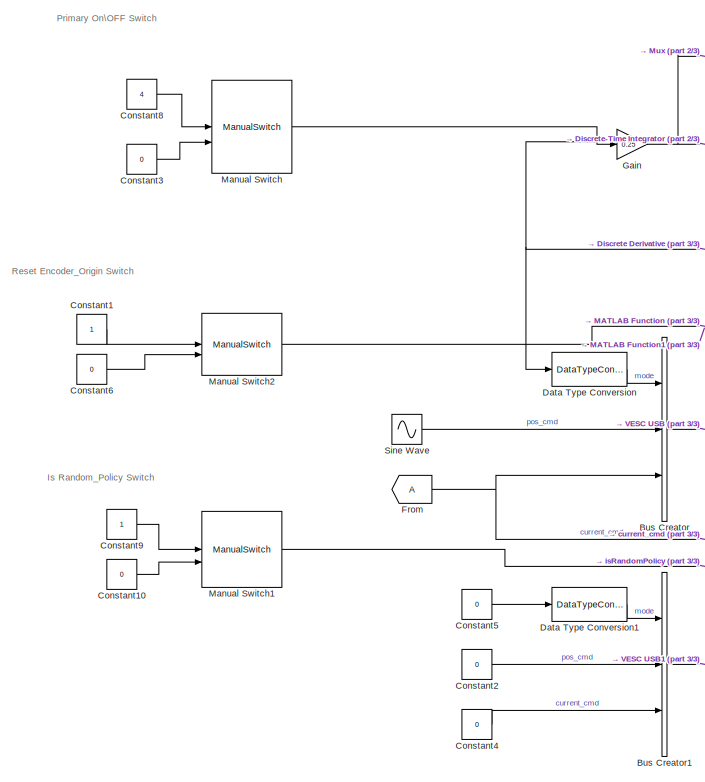
[diagram: root canvas - part 1/3, left side, full height]
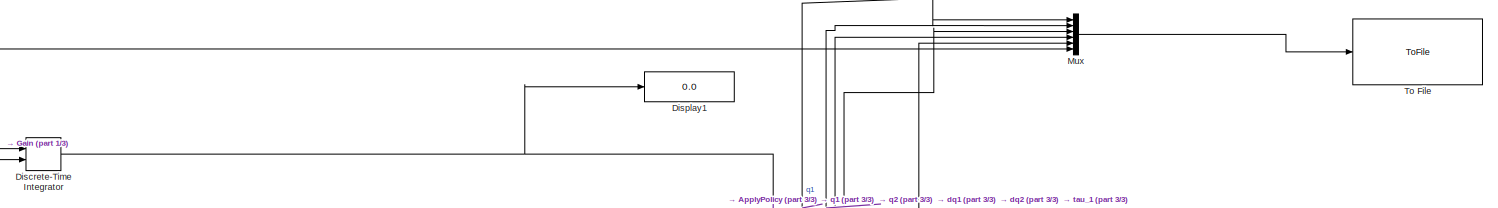
[diagram: root canvas - part 2/3, top center region]
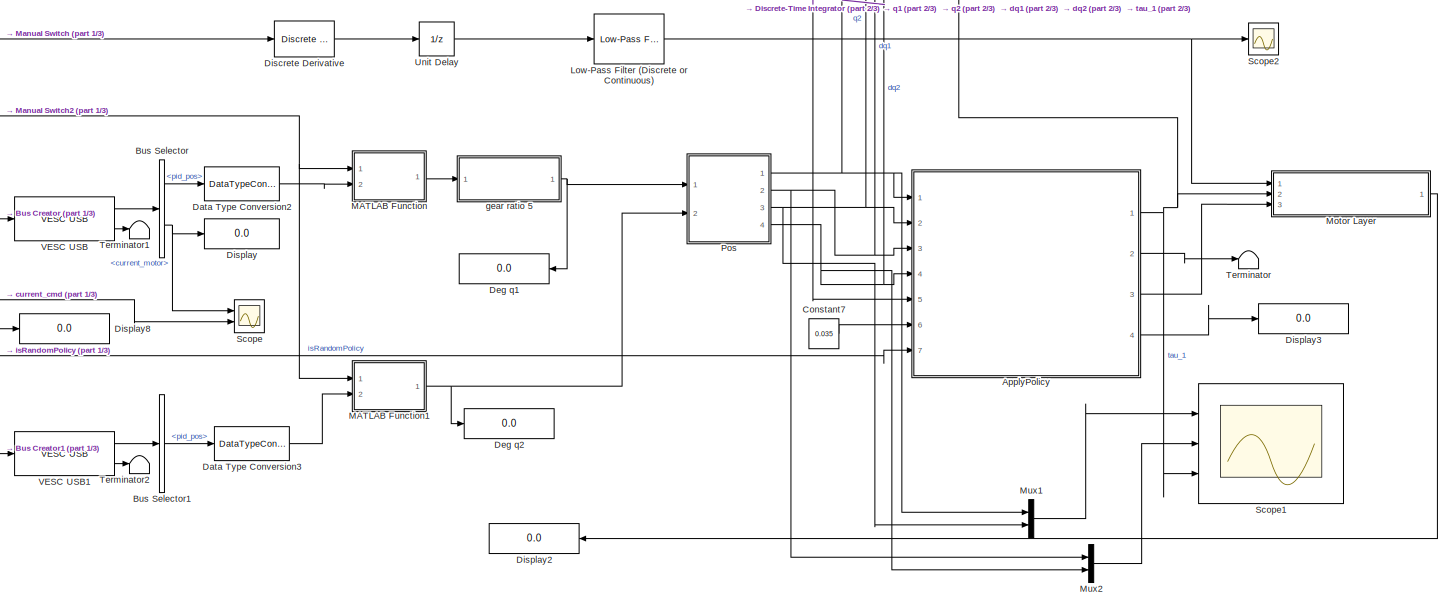
[diagram: root canvas - part 3/3, central region]
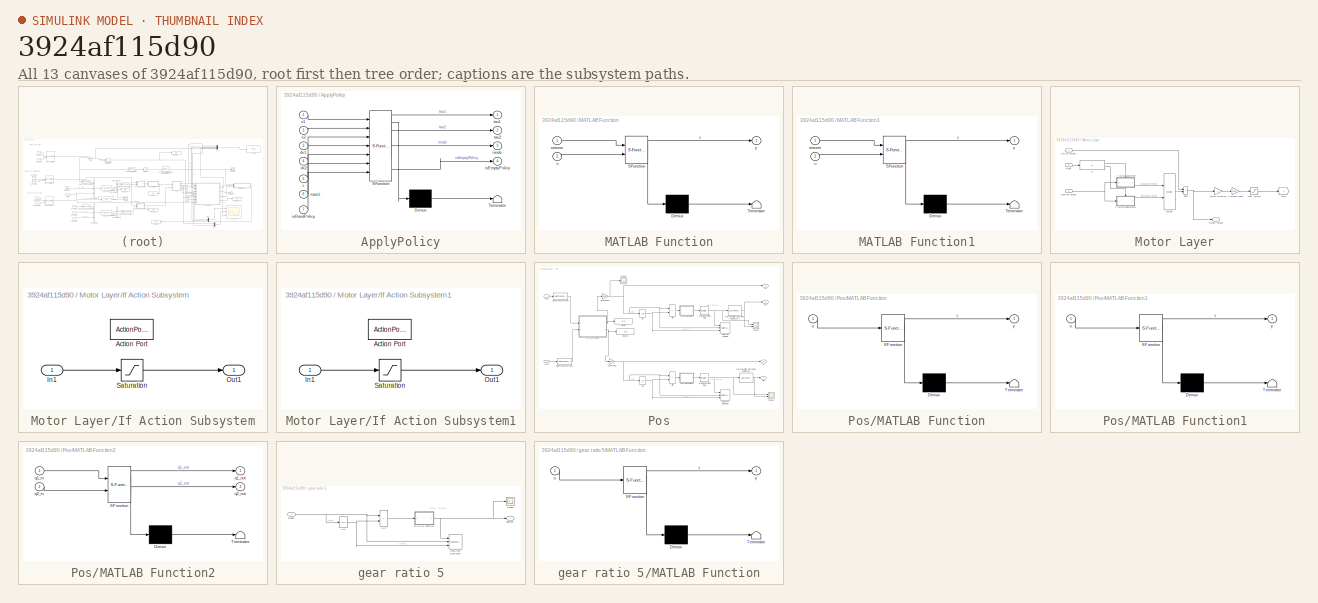
[diagram: thumbnail index - all 13 canvases of the model, root first then tree order]
MODEL slx_3924af115d90
KIND model
CONFIG AbsTol = auto
CONFIG EnableMultiTasking = on
CONFIG FixedStep = auto
CONFIG MaxStep = auto
CONFIG MinStep = auto
CONFIG RelTol = 1e-3
CONFIG SampleTimeConstraint = Unconstrained
CONFIG Solver = FixedStepAuto
CONFIG SolverName = FixedStepAuto
CONFIG StartTime = 0.0
CONFIG StopTime = inf
WORKSPACE source: mxarray member
WORKSPACE Da = 2
WORKSPACE Du = 1
WORKSPACE H = 60
WORKSPACE J = 1
WORKSPACE K = 1
WORKSPACE M: object (value not decoded)
WORKSPACE N = 20
WORKSPACE S0 = [0.01 0 0 0 0 0.01 0 0 0 0 0.0001 0 ... (16 elements, 4x4)]
WORKSPACE S0Sim = [0.01 0 0 0 0 0.01 0 0 0 0 0.0001 0 ... (16 elements, 4x4)]
WORKSPACE Sig: Simulink.Signal (value not decoded)
WORKSPACE Sig1: Simulink.Signal (value not decoded)
WORKSPACE Sigma: object (value not decoded)
WORKSPACE T = 3
WORKSPACE Xh = [3.23195665748 2.09576255698 -0.136551314425 -0.588254405024 -0.201907649817 2.18567618171 -3.25197677698 1.14254532077 -1.68859776393 2.3666318046 2.42554352774 0.153414508771 ... (36 elements, 9x4)]
WORKSPACE angi = [3 4]
WORKSPACE augi = []
WORKSPACE basename = 'pendubot_'
WORKSPACE cc = [0 0 -9.9995000125e-05 0 0 0 -1.22458556834e-20 0 0 0 0 -9.9995000125e-05 ... (16 elements, 4x4)]
WORKSPACE cost: object (value not decoded)
WORKSPACE difi = [1 2 3 4]
WORKSPACE dt = 0.05
WORKSPACE dyni = [1 2 5 6 7 8]
WORKSPACE dynmodel: object (value not decoded)
WORKSPACE dyno = [1 2 3 4]
WORKSPACE fX3 = [57.5848751283 57.5848706735 57.584870567 57.5848705445 57.584869604 57.5848692003 57.5848690287 57.584868717 57.5848685976 57.5848685293 57.5848683991 57.5848682957 ... (151 elements, 151x1)]
WORKSPACE fantasy: object (value not decoded)
WORKSPACE i = 108
WORKSPACE j = 1
WORKSPACE mm = [0 0 3.14159265359 3.14159265359 1.22458556834e-16 -0.99995000125 1.22458556834e-16 -0.99995000125]
WORKSPACE mu0 = [0 0 3.14159265359 3.14159265359]
WORKSPACE mu0Sim = [0 0 3.14159265359 3.14159265359]
WORKSPACE nc = 200
WORKSPACE odei = [1 2 3 4]
WORKSPACE opt: object (value not decoded)
WORKSPACE plant: object (value not decoded)
WORKSPACE plotting: verbosity (value not decoded)
WORKSPACE poli = [1 2 5 6 7 8]
WORKSPACE policy: object (value not decoded)
WORKSPACE rd = '../../'
WORKSPACE realCost: object (value not decoded)
WORKSPACE record_data = [3.14159265359 -3.1396751776 0.0306796157577 0 0 3.14159265359 -3.1408256632 -0.0230097118183 0 0.0167798938511 3.14159265359 3.14120915839 ... (545 elements, 5x109)]
WORKSPACE s = [3.99154064865 -6.40884909322 3.07813248092 -2.1607954049 0.0634175868444 -0.997987078914 -0.830941192004 -0.556360256876]
WORKSPACE sa = [0.0634175868444 -0.997987078914 -0.830941192004 -0.556360256876]
WORKSPACE ss = [0.01 0 0 0 0 0 0 0 0 0.01 0 0 ... (64 elements, 8x8)]
WORKSPACE trainOpt = [200 200]
WORKSPACE x = [0.0306796157577 -0.0230097118183 -0.0230097118183 -0.27412822575 0.0873506184902 1.75503381101 1.22816627149 -0.676608032868 -1.33717744439 -2.33662132144 -2.60950904676 -2.36326465025 ... (972 elements, 108x9)]
WORKSPACE x_ = [3.14159265359 3.14159265359 3.14159265359 -3.11771653557 -3.0819023985 -3.13719441642 3.01718558664 2.86638914992 2.73318560862 2.6734953269 2.7155927132 2.87392898507 ... (540 elements, 108x5)]
WORKSPACE xaug = [0.0306796157577 -0.0230097118183 -0.0230097118183 -0.27412822575 0.0873506184902 1.75503381101 1.22816627149 -0.676608032868 -1.33717744439 -2.33662132144 -2.60950904676 -2.36326465025 ... (864 elements, 108x8)]
WORKSPACE y = [-0.0230097118183 -0.0230097118183 -0.27412822575 0.0873506184902 1.75503381101 1.22816627149 -0.676608032868 -1.33717744439 -2.33662132144 -2.60950904676 -2.36326465025 -0.567289531178 ... (432 elements, 108x4)]
WORKSPACE y_ = [3.14159265359 3.14159265359 -3.11771653557 -3.0819023985 -3.13719441642 3.01718558664 2.86638914992 2.73318560862 2.6734953269 2.7155927132 2.87392898507 3.11017672705 ... (432 elements, 108x4)]
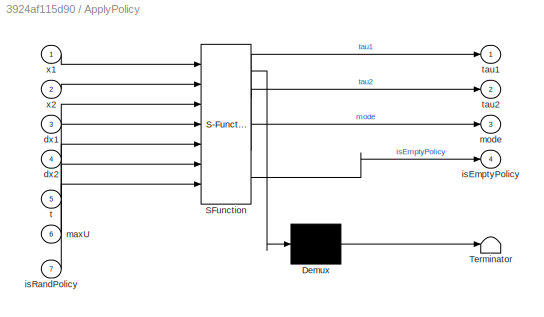
BLOCK [SubSystem] ApplyPolicy
  ErrorFcn = Stateflow.Translate.translate
  PermitHierarchicalResolution = ExplicitOnly
  Ports = [7, 4]
  RequestExecContextInheritance = off
  SFBlockType = MATLAB Function
  TreatAsAtomicUnit = on
BLOCK [Demux] ApplyPolicy/ Demux 
  Outputs = 1
  Ports = [1, 1]
BLOCK [S-Function] ApplyPolicy/ SFunction 
  EnableBusSupport = on
  FunctionName = sf_sfun
  PortCounts = [7 5]
  Ports = [7, 5]
  SFcnIsStateOwnerBlock = off
  SFunctionDeploymentMode = off
  Tag = Stateflow S-Function 2
BLOCK [Terminator] ApplyPolicy/ Terminator 
BLOCK [Inport] ApplyPolicy/dx1
  Port = 3
BLOCK [Inport] ApplyPolicy/dx2
  Port = 4
BLOCK [Outport] ApplyPolicy/isEmptyPolicy
  Port = 4
BLOCK [Inport] ApplyPolicy/isRandPolicy
  Port = 7
BLOCK [Inport] ApplyPolicy/maxU
  Port = 6
BLOCK [Outport] ApplyPolicy/mode
  Port = 3
  VectorParamsAs1DForOutWhenUnconnected = off
BLOCK [Inport] ApplyPolicy/t
  Port = 5
BLOCK [Outport] ApplyPolicy/tau1
  VectorParamsAs1DForOutWhenUnconnected = off
BLOCK [Outport] ApplyPolicy/tau2
  Port = 2
  VectorParamsAs1DForOutWhenUnconnected = off
BLOCK [Inport] ApplyPolicy/x1
BLOCK [Inport] ApplyPolicy/x2
  Port = 2
BLOCK [BusCreator] Bus Creator
  DisplayOption = bar
  InheritFromInputs = on
  Inputs = 3
  Ports = [3, 1]
BLOCK [BusCreator] Bus Creator1
  DisplayOption = bar
  InheritFromInputs = on
  Inputs = 3
  Ports = [3, 1]
BLOCK [BusSelector] Bus Selector
  OutputSignals = pid_pos,current_motor
  Ports = [1, 2]
BLOCK [BusSelector] Bus Selector1
  OutputSignals = pid_pos
  Ports = [1, 1]
BLOCK [Constant] Constant1
BLOCK [Constant] Constant10
  Value = 0
BLOCK [Constant] Constant2
  Value = 0
BLOCK [Constant] Constant3
  Value = 0
BLOCK [Constant] Constant4
  Value = 0
BLOCK [Constant] Constant5
  Value = 0
BLOCK [Constant] Constant6
  Value = 0
BLOCK [Constant] Constant7
  Value = 0.035
BLOCK [Constant] Constant8
  Value = 4
BLOCK [Constant] Constant9
BLOCK [DataTypeConversion] Data Type Conversion
  OutDataTypeStr = uint32
  RndMeth = Floor
  SaturateOnIntegerOverflow = off
BLOCK [DataTypeConversion] Data Type Conversion1
  OutDataTypeStr = uint32
  RndMeth = Floor
  SaturateOnIntegerOverflow = off
BLOCK [DataTypeConversion] Data Type Conversion2
  OutDataTypeStr = double
  RndMeth = Floor
  SaturateOnIntegerOverflow = off
BLOCK [DataTypeConversion] Data Type Conversion3
  OutDataTypeStr = double
  RndMeth = Floor
  SaturateOnIntegerOverflow = off
BLOCK [Display] Deg q1
  Decimation = 1
  NameLocation = top
  Ports = [1]
BLOCK [Display] Deg q2
  Decimation = 1
  Ports = [1]
BLOCK [Reference] Discrete Derivative  REF=simulink/Discrete/Discrete Derivative
  Ports = [1, 1]
  SourceBlock = simulink/Discrete/Discrete Derivative
  SourceProductBaseCode = SL
  SourceType = Discrete Derivative
BLOCK [DiscreteIntegrator] Discrete-Time Integrator
  ExternalReset = falling
  ICPrevOutput = DiscIntNeverNeededParam
  ICPrevScaledInput = DiscIntNeverNeededParam
  InitialConditionSetting = Auto
  Ports = [2, 1]
  SampleTime = -1
BLOCK [Display] Display
  Decimation = 1
  Ports = [1]
BLOCK [Display] Display1
  Decimation = 1
  Ports = [1]
BLOCK [Display] Display2
  Decimation = 1
  NameLocation = top
  Ports = [1]
BLOCK [Display] Display3
  Decimation = 1
  Ports = [1]
BLOCK [Display] Display8
  Decimation = 1
  Ports = [1]
BLOCK [From] From
  TagVisibility = global
BLOCK [Gain] Gain
  Gain = 0.25
BLOCK [Reference] Low-Pass Filter (Discrete or Continuous)  REF=eeGeneralControl/Low-Pass Filter
(Discrete or Continuous)
  Ports = [1, 1]
  SourceBlock = eeGeneralControl/Low-Pass Filter\n(Discrete or Continuous)
  SourceProductBaseCode = PS
  SourceType = Low-Pass Filter (Discrete or Continuous)
BLOCK [SubSystem] MATLAB Function
  ErrorFcn = Stateflow.Translate.translate
  PermitHierarchicalResolution = ExplicitOnly
  Ports = [2, 1]
  RequestExecContextInheritance = off
  SFBlockType = MATLAB Function
  TreatAsAtomicUnit = on
BLOCK [Demux] MATLAB Function/ Demux 
  Outputs = 1
  Ports = [1, 1]
BLOCK [S-Function] MATLAB Function/ SFunction 
  EnableBusSupport = on
  FunctionName = sf_sfun
  PortCounts = [2 2]
  Ports = [2, 2]
  SFcnIsStateOwnerBlock = off
  SFunctionDeploymentMode = off
  Tag = Stateflow S-Function 1
BLOCK [Terminator] MATLAB Function/ Terminator 
BLOCK [Inport] MATLAB Function/setzero
BLOCK [Inport] MATLAB Function/u
  Port = 2
BLOCK [Outport] MATLAB Function/y
  VectorParamsAs1DForOutWhenUnconnected = off
BLOCK [SubSystem] MATLAB Function1
  ErrorFcn = Stateflow.Translate.translate
  PermitHierarchicalResolution = ExplicitOnly
  Ports = [2, 1]
  RequestExecContextInheritance = off
  SFBlockType = MATLAB Function
  TreatAsAtomicUnit = on
BLOCK [Demux] MATLAB Function1/ Demux 
  Outputs = 1
  Ports = [1, 1]
BLOCK [S-Function] MATLAB Function1/ SFunction 
  EnableBusSupport = on
  FunctionName = sf_sfun
  PortCounts = [2 2]
  Ports = [2, 2]
  SFcnIsStateOwnerBlock = off
  SFunctionDeploymentMode = off
  Tag = Stateflow S-Function 3
BLOCK [Terminator] MATLAB Function1/ Terminator 
BLOCK [Inport] MATLAB Function1/setzero
BLOCK [Inport] MATLAB Function1/u
  Port = 2
BLOCK [Outport] MATLAB Function1/y
  VectorParamsAs1DForOutWhenUnconnected = off
BLOCK [ManualSwitch] Manual Switch
  CurrentSetting = 0
BLOCK [ManualSwitch] Manual Switch1
BLOCK [ManualSwitch] Manual Switch2
  CurrentSetting = 0
BLOCK [SubSystem] Motor Layer
  Ports = [3, 1]
  RequestExecContextInheritance = off
BLOCK [Inport] Motor Layer/ mode 
  Port = 3
BLOCK [Gain] Motor Layer/1//Torque Const
  Gain = 1/(29.2e-3)
  OutDataTypeStr = Inherit: Same as input
BLOCK [Inport] Motor Layer/Desired Torque
  Port = 2
BLOCK [Goto] Motor Layer/Goto
  TagVisibility = global
BLOCK [If] Motor Layer/If
  Ports = [1, 2]
BLOCK [SubSystem] Motor Layer/If Action Subsystem
  Ports = [1, 1, 0, 0, 0, 0, 0, 1]
  RequestExecContextInheritance = off
  TreatAsAtomicUnit = on
BLOCK [ActionPort] Motor Layer/If Action Subsystem/Action Port
  ActionPortLabel = if(u1 > 0)
BLOCK [Inport] Motor Layer/If Action Subsystem/In1
BLOCK [Outport] Motor Layer/If Action Subsystem/Out1
  VectorParamsAs1DForOutWhenUnconnected = off
BLOCK [Saturate] Motor Layer/If Action Subsystem/Saturation
  LowerLimit = -0.035
  UpperLimit = 0.035
BLOCK [SubSystem] Motor Layer/If Action Subsystem1
  Ports = [1, 1, 0, 0, 0, 0, 0, 1]
  RequestExecContextInheritance = off
  TreatAsAtomicUnit = on
BLOCK [ActionPort] Motor Layer/If Action Subsystem1/Action Port
  ActionPortLabel = else
BLOCK [Inport] Motor Layer/If Action Subsystem1/In1
BLOCK [Outport] Motor Layer/If Action Subsystem1/Out1
  VectorParamsAs1DForOutWhenUnconnected = off
BLOCK [Saturate] Motor Layer/If Action Subsystem1/Saturation
  LowerLimit = -0.035
  UpperLimit = 0.035
BLOCK [Merge] Motor Layer/Merge
  Ports = [2, 1]
BLOCK [Outport] Motor Layer/Output Torque
  NameLocation = top
  VectorParamsAs1DForOutWhenUnconnected = off
BLOCK [Sum] Motor Layer/Sum
  IconShape = rectangular
  Ports = [2, 1]
BLOCK [Inport] Motor Layer/initial torque
BLOCK [Saturate] Motor Layer/max. current
  LinearizeAsGain = off
  LowerLimit = -3
  UpperLimit = 3
BLOCK [Gain] Motor Layer/motor direction
  Gain = -1
  OutDataTypeStr = Inherit: Same as input
BLOCK [Mux] Mux
  DisplayOption = bar
  Inputs = 6
  Ports = [6, 1]
BLOCK [Mux] Mux1
  DisplayOption = bar
  Inputs = 2
  Ports = [2, 1]
BLOCK [Mux] Mux2
  DisplayOption = bar
  Inputs = 2
  Ports = [2, 1]
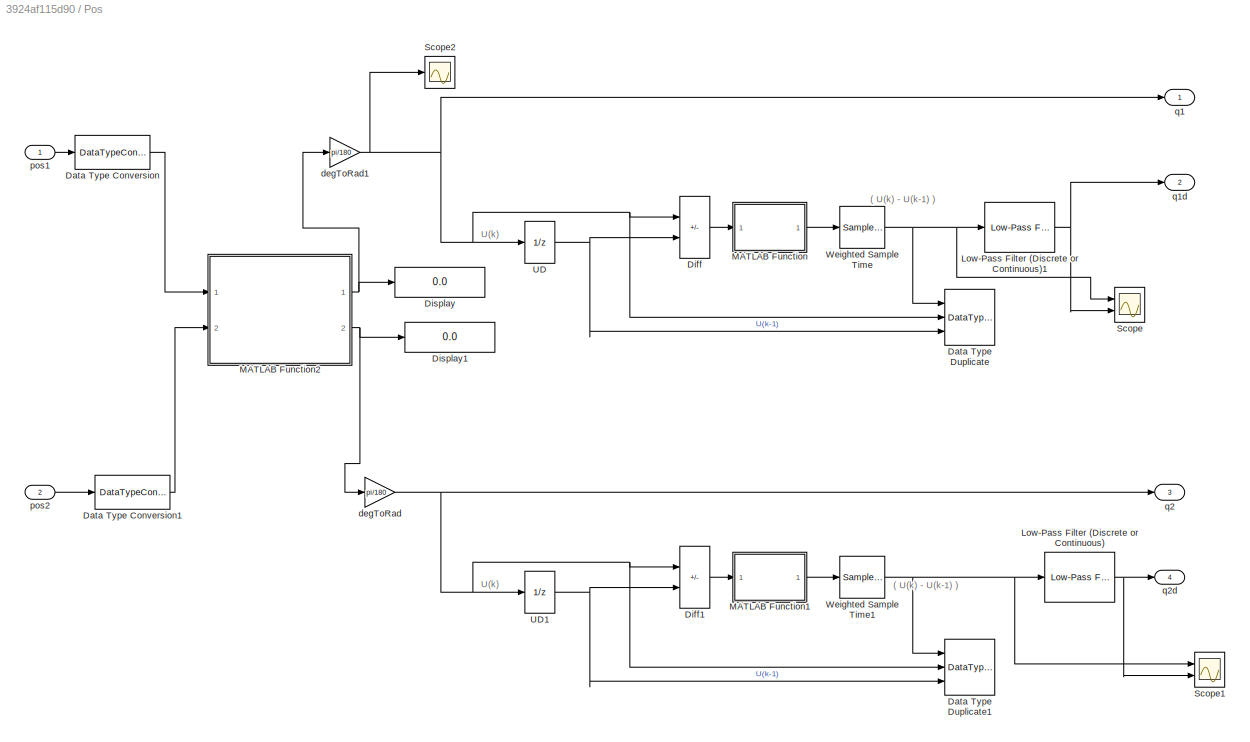
BLOCK [SubSystem] Pos
  Ports = [2, 4]
  RequestExecContextInheritance = off
BLOCK [DataTypeConversion] Pos/Data Type Conversion
  OutDataTypeStr = double
  RndMeth = Floor
  SaturateOnIntegerOverflow = off
BLOCK [DataTypeConversion] Pos/Data Type Conversion1
  OutDataTypeStr = double
  RndMeth = Floor
  SaturateOnIntegerOverflow = off
BLOCK [DataTypeDuplicate] Pos/Data Type Duplicate
  DisableCoverage = on
  NumInputPorts = 3
  Ports = [3]
BLOCK [DataTypeDuplicate] Pos/Data Type Duplicate1
  DisableCoverage = on
  NumInputPorts = 3
  Ports = [3]
BLOCK [Sum] Pos/Diff
  Description = Add in CPU
  IconShape = rectangular
  Inputs = +-
  Ports = [2, 1]
BLOCK [Sum] Pos/Diff1
  Description = Add in CPU
  IconShape = rectangular
  Inputs = +-
  Ports = [2, 1]
BLOCK [Display] Pos/Display
  Decimation = 1
  Ports = [1]
BLOCK [Display] Pos/Display1
  Decimation = 1
  Ports = [1]
BLOCK [Reference] Pos/Low-Pass Filter (Discrete or Continuous)  REF=eeGeneralControl/Low-Pass Filter
(Discrete or Continuous)
  Ports = [1, 1]
  SourceBlock = eeGeneralControl/Low-Pass Filter\n(Discrete or Continuous)
  SourceProductBaseCode = PS
  SourceType = Low-Pass Filter (Discrete or Continuous)
BLOCK [Reference] Pos/Low-Pass Filter (Discrete or Continuous)1  REF=eeGeneralControl/Low-Pass Filter
(Discrete or Continuous)
  Ports = [1, 1]
  SourceBlock = eeGeneralControl/Low-Pass Filter\n(Discrete or Continuous)
  SourceProductBaseCode = PS
  SourceType = Low-Pass Filter (Discrete or Continuous)
BLOCK [SubSystem] Pos/MATLAB Function
  ErrorFcn = Stateflow.Translate.translate
  PermitHierarchicalResolution = ExplicitOnly
  Ports = [1, 1]
  RequestExecContextInheritance = off
  SFBlockType = MATLAB Function
  TreatAsAtomicUnit = on
BLOCK [Demux] Pos/MATLAB Function/ Demux 
  Outputs = 1
  Ports = [1, 1]
BLOCK [S-Function] Pos/MATLAB Function/ SFunction 
  EnableBusSupport = on
  FunctionName = sf_sfun
  PortCounts = [1 2]
  Ports = [1, 2]
  SFcnIsStateOwnerBlock = off
  SFunctionDeploymentMode = off
  Tag = Stateflow S-Function 4
BLOCK [Terminator] Pos/MATLAB Function/ Terminator 
BLOCK [Inport] Pos/MATLAB Function/u
BLOCK [Outport] Pos/MATLAB Function/y
  VectorParamsAs1DForOutWhenUnconnected = off
BLOCK [SubSystem] Pos/MATLAB Function1
  ErrorFcn = Stateflow.Translate.translate
  PermitHierarchicalResolution = ExplicitOnly
  Ports = [1, 1]
  RequestExecContextInheritance = off
  SFBlockType = MATLAB Function
  TreatAsAtomicUnit = on
BLOCK [Demux] Pos/MATLAB Function1/ Demux 
  Outputs = 1
  Ports = [1, 1]
BLOCK [S-Function] Pos/MATLAB Function1/ SFunction 
  EnableBusSupport = on
  FunctionName = sf_sfun
  PortCounts = [1 2]
  Ports = [1, 2]
  SFcnIsStateOwnerBlock = off
  SFunctionDeploymentMode = off
  Tag = Stateflow S-Function 5
BLOCK [Terminator] Pos/MATLAB Function1/ Terminator 
BLOCK [Inport] Pos/MATLAB Function1/u
BLOCK [Outport] Pos/MATLAB Function1/y
  VectorParamsAs1DForOutWhenUnconnected = off
BLOCK [SubSystem] Pos/MATLAB Function2
  ErrorFcn = Stateflow.Translate.translate
  PermitHierarchicalResolution = ExplicitOnly
  Ports = [2, 2]
  RequestExecContextInheritance = off
  SFBlockType = MATLAB Function
  TreatAsAtomicUnit = on
BLOCK [Demux] Pos/MATLAB Function2/ Demux 
  Outputs = 1
  Ports = [1, 1]
BLOCK [S-Function] Pos/MATLAB Function2/ SFunction 
  EnableBusSupport = on
  FunctionName = sf_sfun
  PortCounts = [2 3]
  Ports = [2, 3]
  SFcnIsStateOwnerBlock = off
  SFunctionDeploymentMode = off
  Tag = Stateflow S-Function 7
BLOCK [Terminator] Pos/MATLAB Function2/ Terminator 
BLOCK [Inport] Pos/MATLAB Function2/q1_in
BLOCK [Outport] Pos/MATLAB Function2/q1_out
  VectorParamsAs1DForOutWhenUnconnected = off
BLOCK [Inport] Pos/MATLAB Function2/q2_in
  Port = 2
BLOCK [Outport] Pos/MATLAB Function2/q2_out
  Port = 2
  VectorParamsAs1DForOutWhenUnconnected = off
BLOCK [Scope] Pos/Scope
  Floating = off
  NumInputPorts = 2
  Ports = [2]
  ScopeSpecificationString = Simulink.scopes.TimeScopeBlockCfg('CurrentConfiguration', extmgr.ConfigurationSet(extmgr.Configuration('Core','General UI',true),extmgr.Configuration('Core','Source UI',true),extmgr.Configuration('Sources','WiredSimulink',true,'DataLoggingVariableName','ScopeData1'),extmgr.Configuration('Visuals','Time Domain',true,'SerializedDisplays',{struct('MinYLimReal','-2.35623','MaxYLimReal','2.35617','YLab...<+1494ch>
BLOCK [Scope] Pos/Scope1
  Floating = off
  NumInputPorts = 2
  Ports = [2]
  ScopeSpecificationString = Simulink.scopes.TimeScopeBlockCfg('CurrentConfiguration', extmgr.ConfigurationSet(extmgr.Configuration('Core','General UI',true),extmgr.Configuration('Core','Source UI',true),extmgr.Configuration('Sources','WiredSimulink',true,'DataLoggingVariableName','ScopeData1'),extmgr.Configuration('Visuals','Time Domain',true,'SerializedDisplays',{struct('MinYLimReal','-81.82829','MaxYLimReal','49.99819','YL...<+1506ch>
BLOCK [Scope] Pos/Scope2
  Floating = off
  NumInputPorts = 1
  Ports = [1]
  ScopeSpecificationString = Simulink.scopes.TimeScopeBlockCfg('CurrentConfiguration', extmgr.ConfigurationSet(extmgr.Configuration('Core','General UI',true),extmgr.Configuration('Core','Source UI',true),extmgr.Configuration('Sources','WiredSimulink',true,'DataLoggingVariableName','ScopeData3'),extmgr.Configuration('Visuals','Time Domain',true,'SerializedDisplays',{struct('MinYLimReal','-1.00000','MaxYLimReal','1.00000','YLab...<+1368ch>
BLOCK [UnitDelay] Pos/UD
  Description = Store in Global RAM
  DisableCoverage = on
  HasFrameUpgradeWarning = on
  SampleTime = -1
BLOCK [UnitDelay] Pos/UD1
  Description = Store in Global RAM
  DisableCoverage = on
  HasFrameUpgradeWarning = on
  SampleTime = -1
BLOCK [SampleTimeMath] Pos/Weighted Sample Time
  TsampMathOp = /
BLOCK [SampleTimeMath] Pos/Weighted Sample Time1
  TsampMathOp = /
BLOCK [Gain] Pos/degToRad
  Gain = pi/180
BLOCK [Gain] Pos/degToRad1
  Gain = pi/180
BLOCK [Inport] Pos/pos1
BLOCK [Inport] Pos/pos2
  Port = 2
BLOCK [Outport] Pos/q1
  VectorParamsAs1DForOutWhenUnconnected = off
BLOCK [Outport] Pos/q1d
  Port = 2
  VectorParamsAs1DForOutWhenUnconnected = off
BLOCK [Outport] Pos/q2
  Port = 3
  VectorParamsAs1DForOutWhenUnconnected = off
BLOCK [Outport] Pos/q2d
  Port = 4
  VectorParamsAs1DForOutWhenUnconnected = off
BLOCK [Scope] Scope
  Floating = off
  NumInputPorts = 2
  Ports = [2]
  ScopeSpecificationString = Simulink.scopes.TimeScopeBlockCfg('CurrentConfiguration', extmgr.ConfigurationSet(extmgr.Configuration('Core','General UI',true),extmgr.Configuration('Core','Source UI',true),extmgr.Configuration('Sources','WiredSimulink',true,'DataLoggingVariableName','ScopeData2'),extmgr.Configuration('Visuals','Time Domain',true,'SerializedDisplays',{struct('MinYLimReal','-0.03375','MaxYLimReal','0.30375','YLab...<+2048ch>
BLOCK [Scope] Scope1
  Floating = off
  NumInputPorts = 3
  Ports = [3]
  ScopeSpecificationString = Simulink.scopes.TimeScopeBlockCfg('CurrentConfiguration', extmgr.ConfigurationSet(extmgr.Configuration('Core','General UI',true),extmgr.Configuration('Core','Source UI',true),extmgr.Configuration('Sources','WiredSimulink',true,'DataLoggingVariableName','ScopeData1'),extmgr.Configuration('Visuals','Time Domain',true,'SerializedDisplays',{struct('MinYLimReal','-5','MaxYLimReal','5','YLabelReal','Rad...<+2769ch>
BLOCK [Scope] Scope2
  Floating = off
  NumInputPorts = 1
  Ports = [1]
  ScopeSpecificationString = Simulink.scopes.TimeScopeBlockCfg('CurrentConfiguration', extmgr.ConfigurationSet(extmgr.Configuration('Core','General UI',true),extmgr.Configuration('Core','Source UI',true),extmgr.Configuration('Sources','WiredSimulink',true,'DataLoggingVariableName','ScopeData1'),extmgr.Configuration('Visuals','Time Domain',true,'SerializedDisplays',{struct('MinYLimReal','0.0000000000000000000000000000000000000...<+3984ch>
BLOCK [Sin] Sine Wave
  Amplitude = 150
  Bias = 10
  Ports = [0, 1]
  SampleTime = 0
BLOCK [Terminator] Terminator
BLOCK [Terminator] Terminator1
BLOCK [Terminator] Terminator2
BLOCK [ToFile] To File
  Filename = pendubot_record.mat
  MatrixName = record_data
  Ports = [1]
BLOCK [UnitDelay] Unit Delay
  HasFrameUpgradeWarning = on
  SampleTime = -1
BLOCK [Reference] VESC USB  REF=cm_custom/VESC USB  (lib defined in slx_d6c950ba7fcc)
  Ports = [1, 2]
  SourceBlock = cm_custom/VESC USB
  SourceProductName = cm custom
  SourceType = VESC USB (Linux)
BLOCK [Reference] VESC USB1  REF=cm_custom/VESC USB  (lib defined in slx_d6c950ba7fcc)
  Ports = [1, 2]
  SourceBlock = cm_custom/VESC USB
  SourceProductName = cm custom
  SourceType = VESC USB (Linux)
BLOCK [SubSystem] gear ratio 5
  Ports = [1, 1]
  RequestExecContextInheritance = off
BLOCK [DataTypeDuplicate] gear ratio 5/Data Type Duplicate
  DisableCoverage = on
  NumInputPorts = 3
  Ports = [3]
BLOCK [Sum] gear ratio 5/Diff
  Description = Add in CPU
  IconShape = rectangular
  Inputs = +-
  Ports = [2, 1]
BLOCK [SubSystem] gear ratio 5/MATLAB Function
  ErrorFcn = Stateflow.Translate.translate
  PermitHierarchicalResolution = ExplicitOnly
  Ports = [1, 1]
  RequestExecContextInheritance = off
  SFBlockType = MATLAB Function
  TreatAsAtomicUnit = on
BLOCK [Demux] gear ratio 5/MATLAB Function/ Demux 
  Outputs = 1
  Ports = [1, 1]
BLOCK [S-Function] gear ratio 5/MATLAB Function/ SFunction 
  EnableBusSupport = on
  FunctionName = sf_sfun
  PortCounts = [1 2]
  Ports = [1, 2]
  SFcnIsStateOwnerBlock = off
  SFunctionDeploymentMode = off
  Tag = Stateflow S-Function 6
BLOCK [Terminator] gear ratio 5/MATLAB Function/ Terminator 
BLOCK [Inport] gear ratio 5/MATLAB Function/u
BLOCK [Outport] gear ratio 5/MATLAB Function/y
  VectorParamsAs1DForOutWhenUnconnected = off
BLOCK [Scope] gear ratio 5/Scope
  Floating = off
  NumInputPorts = 1
  Ports = [1]
  ScopeSpecificationString = Simulink.scopes.TimeScopeBlockCfg('CurrentConfiguration', extmgr.ConfigurationSet(extmgr.Configuration('Core','General UI',true),extmgr.Configuration('Core','Source UI',true),extmgr.Configuration('Sources','WiredSimulink',true,'DataLoggingVariableName','ScopeData3','DataLoggingSaveFormat','Array','DataLoggingLimitDataPoints',true,'DataLoggingDecimation','1'),extmgr.Configuration('Visuals','Time Do...<+1639ch>
BLOCK [UnitDelay] gear ratio 5/UD
  Description = Store in Global RAM
  DisableCoverage = on
  HasFrameUpgradeWarning = on
  SampleTime = -1
BLOCK [Outport] gear ratio 5/gearpos
  VectorParamsAs1DForOutWhenUnconnected = off
BLOCK [Inport] gear ratio 5/pidpos
ANNOTATION (root): Is Random_Policy Switch
ANNOTATION (root): Primary On\OFF Switch
ANNOTATION (root): Reset Encoder_Origin Switch
ANNOTATION Pos: ( U(k) - U(k-1) )
ANNOTATION Pos: U(k)
ANNOTATION gear ratio 5: ( U(k) - U(k-1) )
ANNOTATION gear ratio 5: U(k)
NET ApplyPolicy:1 -> Motor Layer:2, Mux:5, Scope1:3
LINE ApplyPolicy:2 -> Terminator:1
LINE ApplyPolicy:3 -> Motor Layer:3
LINE ApplyPolicy:4 -> Display3:1
LINE Bus Creator1:1 -> VESC USB1:1
LINE Bus Creator:1 -> VESC USB:1
LINE Bus Selector1:1 -> Data Type Conversion3:1
LINE Bus Selector:1 -> Data Type Conversion2:1
NET Bus Selector:2 -> Display:1, Scope:1
LINE Constant10:1 -> Manual Switch1:2
LINE Constant1:1 -> Manual Switch2:1
LINE Constant2:1 -> Bus Creator1:2
LINE Constant3:1 -> Manual Switch:2
LINE Constant4:1 -> Bus Creator1:3
LINE Constant5:1 -> Data Type Conversion1:1
LINE Constant6:1 -> Manual Switch2:2
LINE Constant7:1 -> ApplyPolicy:6
LINE Constant8:1 -> Manual Switch:1
LINE Constant9:1 -> Manual Switch1:1
LINE Data Type Conversion1:1 -> Bus Creator1:1
LINE Data Type Conversion2:1 -> MATLAB Function:2
LINE Data Type Conversion3:1 -> MATLAB Function1:2
LINE Data Type Conversion:1 -> Bus Creator:1
LINE Discrete Derivative:1 -> Unit Delay:1
NET Discrete-Time Integrator:1 -> ApplyPolicy:5, Display1:1
NET From:1 -> Bus Creator:3, Display8:1, Scope:2
NET Gain:1 -> Discrete-Time Integrator:1, Discrete-Time Integrator:2, Mux:6
NET Low-Pass Filter (Discrete or Continuous):1 -> Motor Layer:1, Scope2:1
NET MATLAB Function1:1 -> Deg q2:1, Pos:2
LINE MATLAB Function:1 -> gear ratio 5:1
LINE Manual Switch1:1 -> ApplyPolicy:7
NET Manual Switch2:1 -> MATLAB Function1:1, MATLAB Function:1
NET Manual Switch:1 -> Data Type Conversion:1, Discrete Derivative:1, Gain:1
LINE Motor Layer/ mode :1 -> Motor Layer/If:1
LINE Motor Layer/1//Torque Const:1 -> Motor Layer/max. current:1
NET Motor Layer/Desired Torque:1 -> Motor Layer/If Action Subsystem1:1, Motor Layer/If Action Subsystem:1
LINE Motor Layer/If Action Subsystem/In1:1 -> Motor Layer/If Action Subsystem/Saturation:1
LINE Motor Layer/If Action Subsystem/Saturation:1 -> Motor Layer/If Action Subsystem/Out1:1
LINE Motor Layer/If Action Subsystem1/In1:1 -> Motor Layer/If Action Subsystem1/Saturation:1
LINE Motor Layer/If Action Subsystem1/Saturation:1 -> Motor Layer/If Action Subsystem1/Out1:1
LINE Motor Layer/If Action Subsystem1:1 -> Motor Layer/Merge:2
LINE Motor Layer/If Action Subsystem:1 -> Motor Layer/Merge:1
LINE Motor Layer/If:1 -> Motor Layer/If Action Subsystem:ifaction
LINE Motor Layer/If:2 -> Motor Layer/If Action Subsystem1:ifaction
LINE Motor Layer/Merge:1 -> Motor Layer/Sum:2
NET Motor Layer/Sum:1 -> Motor Layer/Output Torque:1, Motor Layer/motor direction:1
LINE Motor Layer/initial torque:1 -> Motor Layer/Sum:1
LINE Motor Layer/max. current:1 -> Motor Layer/Goto:1
LINE Motor Layer/motor direction:1 -> Motor Layer/1//Torque Const:1
LINE Motor Layer:1 -> Display2:1
LINE Mux1:1 -> Scope1:1
LINE Mux2:1 -> Scope1:2
LINE Mux:1 -> To File:1
LINE Pos/Data Type Conversion1:1 -> Pos/MATLAB Function2:2
LINE Pos/Data Type Conversion:1 -> Pos/MATLAB Function2:1
LINE Pos/Diff1:1 -> Pos/MATLAB Function1:1
LINE Pos/Diff:1 -> Pos/MATLAB Function:1
NET Pos/Low-Pass Filter (Discrete or Continuous)1:1 -> Pos/Scope:2, Pos/q1d:1
NET Pos/Low-Pass Filter (Discrete or Continuous):1 -> Pos/Scope1:2, Pos/q2d:1
LINE Pos/MATLAB Function1:1 -> Pos/Weighted Sample Time1:1
NET Pos/MATLAB Function2:1 -> Pos/Display:1, Pos/degToRad1:1
NET Pos/MATLAB Function2:2 -> Pos/Display1:1, Pos/degToRad:1
LINE Pos/MATLAB Function:1 -> Pos/Weighted Sample Time:1
NET Pos/UD1:1 -> Pos/Data Type Duplicate1:3, Pos/Diff1:2
NET Pos/UD:1 -> Pos/Data Type Duplicate:3, Pos/Diff:2
NET Pos/Weighted Sample Time1:1 -> Pos/Data Type Duplicate1:1, Pos/Low-Pass Filter (Discrete or Continuous):1, Pos/Scope1:1
NET Pos/Weighted Sample Time:1 -> Pos/Data Type Duplicate:1, Pos/Low-Pass Filter (Discrete or Continuous)1:1, Pos/Scope:1
NET Pos/degToRad1:1 -> Pos/Data Type Duplicate:2, Pos/Diff:1, Pos/Scope2:1, Pos/UD:1, Pos/q1:1
NET Pos/degToRad:1 -> Pos/Data Type Duplicate1:2, Pos/Diff1:1, Pos/UD1:1, Pos/q2:1
LINE Pos/pos1:1 -> Pos/Data Type Conversion:1
LINE Pos/pos2:1 -> Pos/Data Type Conversion1:1
NET Pos:1 -> ApplyPolicy:1, Mux1:1, Mux:1
NET Pos:2 -> ApplyPolicy:3, Mux2:1, Mux:4
NET Pos:3 -> ApplyPolicy:2, Mux1:2, Mux:2
NET Pos:4 -> ApplyPolicy:4, Mux2:2, Mux:3
LINE Sine Wave:1 -> Bus Creator:2
LINE Unit Delay:1 -> Low-Pass Filter (Discrete or Continuous):1
LINE VESC USB1:1 -> Bus Selector1:1
LINE VESC USB1:2 -> Terminator2:1
LINE VESC USB:1 -> Bus Selector:1
LINE VESC USB:2 -> Terminator1:1
LINE gear ratio 5/Diff:1 -> gear ratio 5/MATLAB Function:1
NET gear ratio 5/MATLAB Function:1 -> gear ratio 5/Data Type Duplicate:1, gear ratio 5/Scope:1, gear ratio 5/gearpos:1
NET gear ratio 5/UD:1 -> gear ratio 5/Data Type Duplicate:3, gear ratio 5/Diff:2
NET gear ratio 5/pidpos:1 -> gear ratio 5/Data Type Duplicate:2, gear ratio 5/Diff:1, gear ratio 5/UD:1
NET gear ratio 5:1 -> Deg q1:1, Pos:1
note: NET lines group one-source signal fan-out (src -> all destinations, sorted); 1:1 wires keep LINE
CHART MATLAB Function states=1 transitions=1
  STATE_LABEL 'eML_blk_kernel()'
  STATE_LABEL 'SCRIPT:\nfunction y = fcn(setzero,u)\n\npersistent initpos\nif isempty(initpos)\n    initpos = 0;\nend\n\nif setzero\n    initpos = u + 0;\nend\n\n\ny = u - initpos;\ny = y - 360*floor(y/360);\n'
CHART ApplyPolicy states=1 transitions=1
  STATE_LABEL 'eML_blk_kernel()'
  STATE_LABEL 'SCRIPT:\nfunction [tau1,tau2, mode, isEmptyPolicy] = ApplyPolicy(x1,x2,dx1,dx2,t,maxU, isRandPolicy)\n    % % start, policy, H, plant, cost\n    % angi = [3,4]\n\n    % \n    % % % 1. Apply policy ... or random actions --------------------------------------\n    % % if policy.isRandom\n    % %     u = policy.fcn(policy,s(poli),zeros(length(poli)));\n    % % else\n    % \n    persistent policy\n\n    if isempty...<+764ch>'
CHART MATLAB Function1 states=1 transitions=1
  STATE_LABEL 'eML_blk_kernel()'
  STATE_LABEL 'SCRIPT:\nfunction y = fcn(setzero,u)\n\npersistent initpos\nif isempty(initpos)\n    initpos = 0;\nend\n\nif setzero\n    initpos = u + 0;\nend\n\n\ny = u - initpos;\n%y = y - 360*floor(y/360);\n'
CHART Pos/MATLAB Function states=1 transitions=1
  STATE_LABEL 'eML_blk_kernel()'
  STATE_LABEL 'SCRIPT:\nfunction y = fcn(u)\n\nu_rev = (u >= 0)*(2*pi - u) + (u < 0)*(2*pi + u);\n\nif abs(u_rev) > abs(u)\n   y = u;\nelse\n   y = (u < 0)*u_rev - (u >= 0)*u_rev;\nend\n\n'
CHART Pos/MATLAB Function1 states=1 transitions=1
  STATE_LABEL 'eML_blk_kernel()'
  STATE_LABEL 'SCRIPT:\nfunction y = fcn(u)\n\nu_rev = (u >= 0)*(2*pi - u) + (u < 0)*(2*pi + u);\n\nif abs(u_rev) > abs(u)\n   y = u;\nelse\n   y = (u < 0)*u_rev - (u >= 0)*u_rev;\nend\n\n'
CHART gear ratio 5/MATLAB Function states=1 transitions=1
  STATE_LABEL 'eML_blk_kernel()'
  STATE_LABEL 'SCRIPT:\nfunction y = fcn(u)\n\npersistent pos1\nif isempty(pos1)\n    pos1 = 0;\nend\n\nu_rev = (u >= 0)*(360 - u) + (u < 0)*(360 + u);\nif abs(u_rev) < abs(u)\n   u = (u < 0)*u_rev - (u >= 0)*u_rev;\nend\n\nu = u/5;\npos1 = pos1 + u;\npos1 = mod((pos1),360);\ny = pos1;\n\nend\n\n\n'
CHART Pos/MATLAB Function2 states=1 transitions=1
  STATE_LABEL 'eML_blk_kernel()'
  STATE_LABEL 'SCRIPT:\nfunction [q1_out, q2_out] = convert_to_absolute(q1_in,q2_in)\n\nq1_out = q1_in -180;\n\nq2_out = mod(q2_in+q1_in, 360)-180;\n\n% toggle directions\nq1_out = - q1_out;\nq2_out = - q2_out;\nend\n'
CHART  states=0 transitions=0
CHART  states=0 transitions=0
CHART  states=0 transitions=0
CHART  states=0 transitions=0
CHART  states=0 transitions=0
CHART  states=0 transitions=0
CHART  states=0 transitions=0
